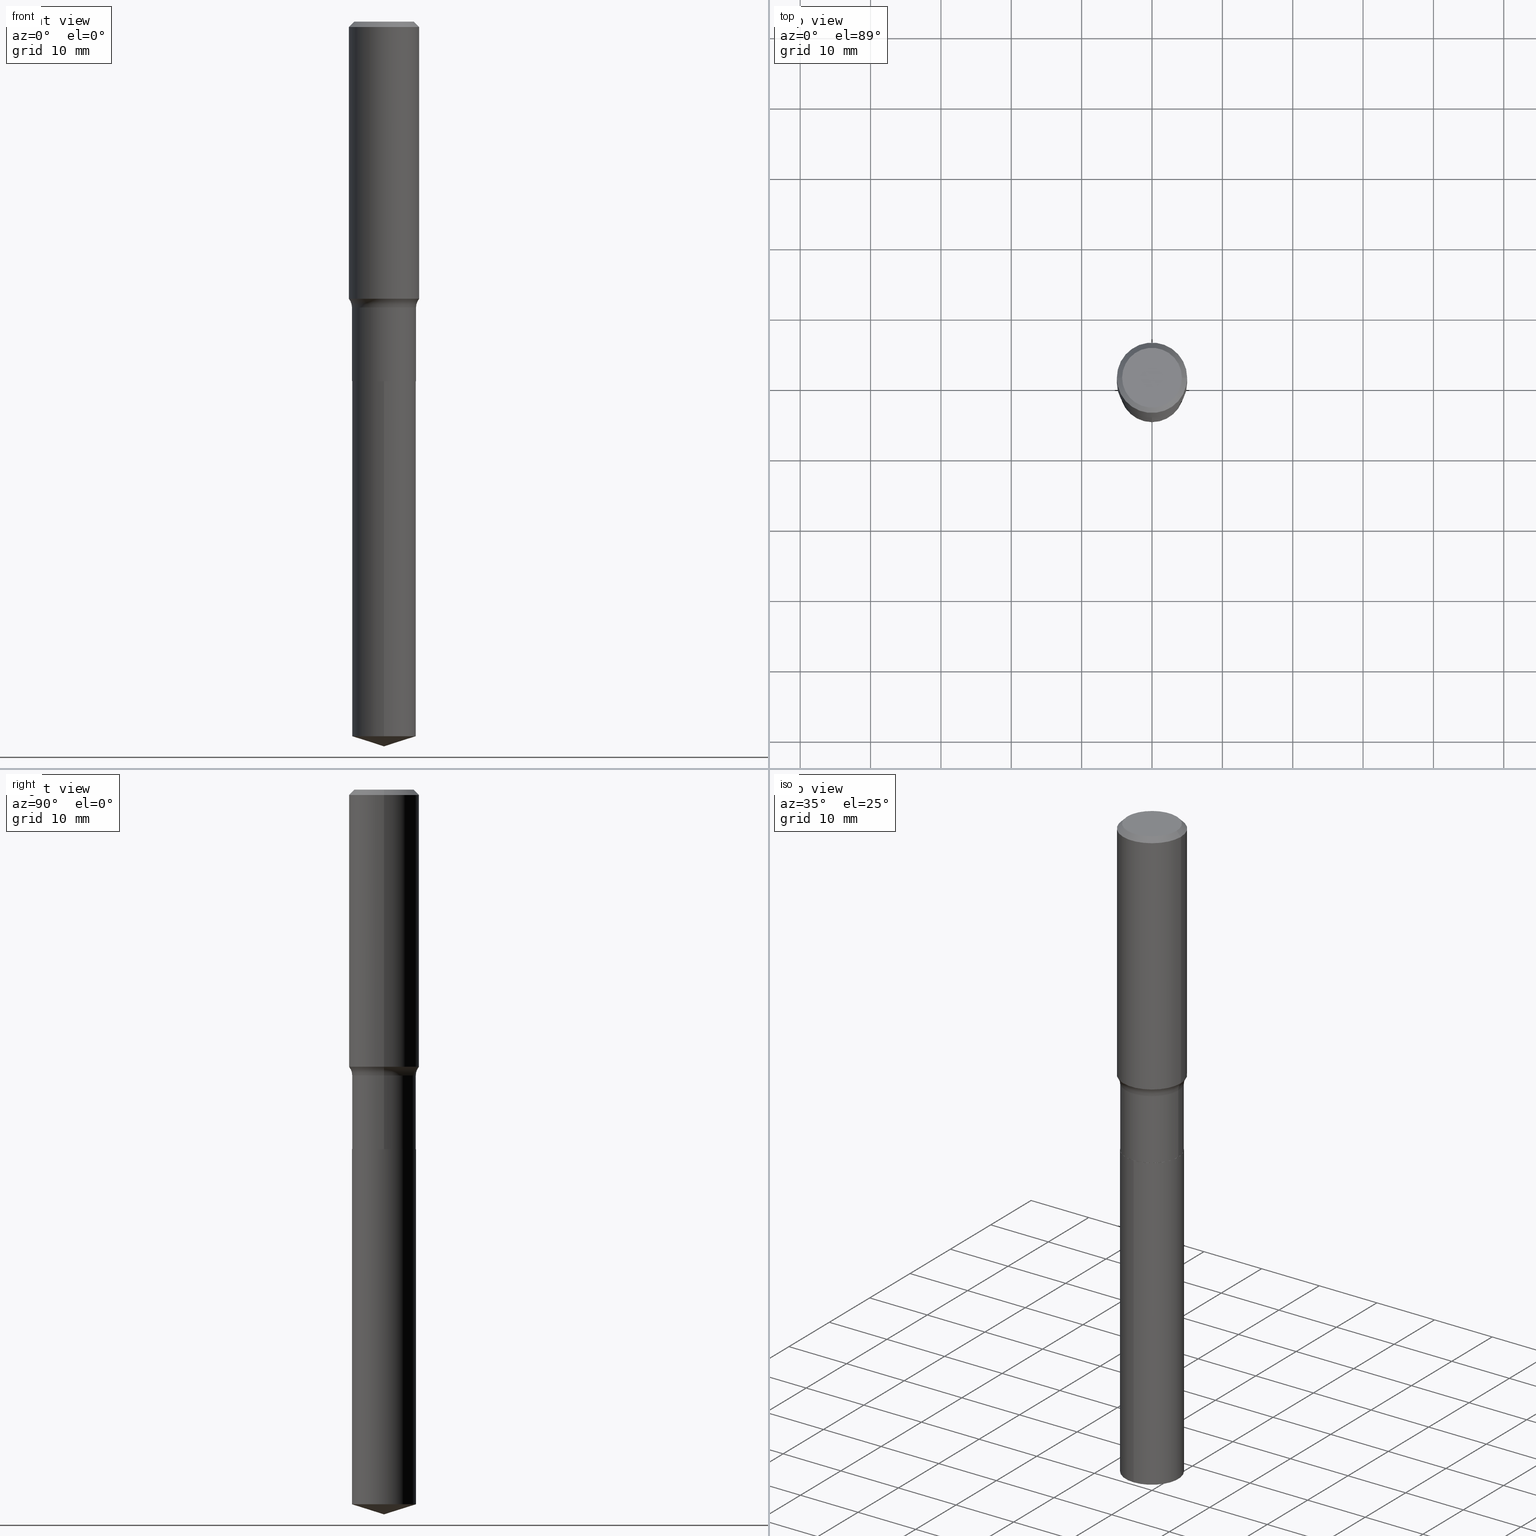
[diagram: canonical four-view strip — front | top / right | iso, engineering-drawing reading convention]
A machine part, canonical four-view strip (front | top / right | iso — engineering-drawing reading convention). The complete STEP part file that produces these views, byte-faithful:
ISO-10303-21;
HEADER;
FILE_DESCRIPTION (( 'STEP AP203' ),
    '1' );
FILE_NAME ('64164.STEP',
    '2024-04-19T15:25:16',
    ( '' ),
    ( '' ),
    'SwSTEP 2.0',
    'SolidWorks 2023',
    '' );
FILE_SCHEMA (( 'CONFIG_CONTROL_DESIGN' ));
ENDSEC;

DATA;
#1 = CIRCLE ( 'NONE', #245, 0.1791500000000000314 ) ;
#2 = AXIS2_PLACEMENT_3D ( 'NONE', #141, #23, #140 ) ;
#3 = LINE ( 'NONE', #266, #311 ) ;
#4 = ORIENTED_EDGE ( 'NONE', *, *, #139, .F. ) ;
#5 = EDGE_CURVE ( 'NONE', #236, #88, #124, .T. ) ;
#6 = CARTESIAN_POINT ( 'NONE',  ( 0.000000000000000000, 0.000000000000000000, 0.000000000000000000 ) ) ;
#7 = ORIENTED_EDGE ( 'NONE', *, *, #375, .F. ) ;
#8 = APPROVAL_ROLE ( '' ) ;
#9 = DIRECTION ( 'NONE',  ( -6.982962677686265922E-15, -1.000000000000000000, 3.500519750498688260E-15 ) ) ;
#10 = CARTESIAN_POINT ( 'NONE',  ( 0.1968500000000000527, -1.453583746094018101E-15, -0.02952750000000019595 ) ) ;
#11 = CIRCLE ( 'NONE', #377, 0.1791499999999999759 ) ;
#12 = CALENDAR_DATE ( 2024, 19, 4 ) ;
#13 = ORIENTED_EDGE ( 'NONE', *, *, #234, .T. ) ;
#14 = CARTESIAN_POINT ( 'NONE',  ( -0.1968500000000000527, 1.271501487869850317E-15, -0.02952750000000019595 ) ) ;
#15 = APPLICATION_PROTOCOL_DEFINITION ( 'international standard', 'config_control_design', 1994, #286 ) ;
#16 = DIRECTION ( 'NONE',  ( -2.445468806185136597E-29, 3.491481338843145583E-15, 1.000000000000000000 ) ) ;
#17 = PERSON_AND_ORGANIZATION ( #355, #353 ) ;
#18 = CARTESIAN_POINT ( 'NONE',  ( 3.791268106025666650E-29, -5.412926065243654777E-15, -1.550323642009541425 ) ) ;
#19 = CARTESIAN_POINT ( 'NONE',  ( 4.919794144283257255E-29, -7.024162157484639438E-15, -2.011800000000000033 ) ) ;
#20 = CONICAL_SURFACE ( 'NONE', #238, 0.1968500000000000527, 0.7853981633974459475 ) ;
#21 = CIRCLE ( 'NONE', #85, 0.1791500000000000592 ) ;
#22 = EDGE_CURVE ( 'NONE', #37, #308, #204, .T. ) ;
#23 = DIRECTION ( 'NONE',  ( -2.445468806185136597E-29, 3.491481338843145583E-15, 1.000000000000000000 ) ) ;
#24 = APPROVAL ( #200, 'UNSPECIFIED' ) ;
#25 = CYLINDRICAL_SURFACE ( 'NONE', #369, 0.1791500000000000314 ) ;
#26 = CARTESIAN_POINT ( 'NONE',  ( 0.1786500000000000310, -8.271668439853292431E-15, -2.011800000000000033 ) ) ;
#27 = FACE_OUTER_BOUND ( 'NONE', #401, .T. ) ;
#28 = CARTESIAN_POINT ( 'NONE',  ( 0.2571499999999999342, -7.381340698448287746E-15, -1.599800000000000333 ) ) ;
#29 = AXIS2_PLACEMENT_3D ( 'NONE', #403, #287, #482 ) ;
#30 = DIRECTION ( 'NONE',  ( 6.776566513254260504E-15, 0.9537169507482292641, 0.3007057995042659027 ) ) ;
#31 = CARTESIAN_POINT ( 'NONE',  ( 0.1791500000000000314, -1.250997763707495014E-15, 8.735670693838419573E-30 ) ) ;
#32 = ORIENTED_EDGE ( 'NONE', *, *, #288, .F. ) ;
#33 = DIRECTION ( 'NONE',  ( -2.445468806185136597E-29, 3.491481338843145583E-15, 1.000000000000000000 ) ) ;
#34 = AXIS2_PLACEMENT_3D ( 'NONE', #111, #346, #386 ) ;
#35 = EDGE_LOOP ( 'NONE', ( #109, #310 ) ) ;
#36 = DESIGN_CONTEXT ( 'detailed design', #286, 'design' ) ;
#37 = VERTEX_POINT ( 'NONE', #432 ) ;
#38 = FACE_OUTER_BOUND ( 'NONE', #35, .T. ) ;
#39 = ADVANCED_BREP_SHAPE_REPRESENTATION ( '64164', ( #399, #65, #196 ), #296 ) ;
#40 = VERTEX_POINT ( 'NONE', #351 ) ;
#41 = AXIS2_PLACEMENT_3D ( 'NONE', #19, #440, #391 ) ;
#42 =( CONVERSION_BASED_UNIT ( 'INCH', #337 ) LENGTH_UNIT ( ) NAMED_UNIT ( #197 ) );
#43 = ORIENTED_EDGE ( 'NONE', *, *, #5, .T. ) ;
#44 = DATE_AND_TIME ( #397, #320 ) ;
#45 = DIRECTION ( 'NONE',  ( 1.000000000000000000, -6.982962677686265133E-15, 0.000000000000000000 ) ) ;
#46 = CALENDAR_DATE ( 2024, 19, 4 ) ;
#47 = EDGE_LOOP ( 'NONE', ( #338, #43, #212, #374 ) ) ;
#48 = PERSON_AND_ORGANIZATION ( #355, #353 ) ;
#49 = ORIENTED_EDGE ( 'NONE', *, *, #407, .T. ) ;
#50 = AXIS2_PLACEMENT_3D ( 'NONE', #101, #103, #376 ) ;
#51 = EDGE_CURVE ( 'NONE', #37, #206, #331, .T. ) ;
#52 = PERSON_AND_ORGANIZATION ( #355, #353 ) ;
#53 = ORIENTED_EDGE ( 'NONE', *, *, #490, .T. ) ;
#54 = DIRECTION ( 'NONE',  ( -0.7071067811865459074, 2.468850131082239706E-15, -0.7071067811865492381 ) ) ;
#55 = PERSON_AND_ORGANIZATION ( #355, #353 ) ;
#56 = ORIENTED_EDGE ( 'NONE', *, *, #438, .T. ) ;
#57 = DIRECTION ( 'NONE',  ( 1.000000000000000000, -6.982962677686266711E-15, 0.000000000000000000 ) ) ;
#58 = FACE_OUTER_BOUND ( 'NONE', #390, .T. ) ;
#59 = LINE ( 'NONE', #14, #455 ) ;
#60 = CC_DESIGN_DATE_AND_TIME_ASSIGNMENT ( #203, #357, ( #157 ) ) ;
#61 = CIRCLE ( 'NONE', #479, 0.1673224999999999851 ) ;
#62 = DIRECTION ( 'NONE',  ( 1.000000000000000000, -6.982962677686265922E-15, 0.000000000000000000 ) ) ;
#63 = CARTESIAN_POINT ( 'NONE',  ( -5.008488096090108951E-47, 7.150793614331948590E-33, 2.048068690724054183E-18 ) ) ;
#64 = DIRECTION ( 'NONE',  ( -1.000000000000000000, 6.982962677686266711E-15, 0.000000000000000000 ) ) ;
#65 = MANIFOLD_SOLID_BREP ( 'Body-Move/Copy2[2]', #220 ) ;
#66 = DIRECTION ( 'NONE',  ( 1.000000000000000000, -6.982962677686269866E-15, 0.000000000000000000 ) ) ;
#67 = CIRCLE ( 'NONE', #119, 0.1791500000000000314 ) ;
#68 = ADVANCED_FACE ( 'NONE', ( #398 ), #136, .T. ) ;
#69 = PLANE ( 'NONE',  #148 ) ;
#70 = DIRECTION ( 'NONE',  ( 1.000000000000000000, -6.982962677686265922E-15, 0.000000000000000000 ) ) ;
#71 = EDGE_LOOP ( 'NONE', ( #184, #147, #452, #243 ) ) ;
#72 = DIRECTION ( 'NONE',  ( 1.000000000000000000, -6.982962677686268288E-15, 0.000000000000000000 ) ) ;
#73 = DIRECTION ( 'NONE',  ( -0.7071067811866441621, 7.493145998870704414E-15, 0.7071067811864508723 ) ) ;
#74 = EDGE_LOOP ( 'NONE', ( #344, #115, #466, #426 ) ) ;
#75 = EDGE_CURVE ( 'NONE', #88, #308, #367, .T. ) ;
#76 = AXIS2_PLACEMENT_3D ( 'NONE', #356, #16, #280 ) ;
#77 = LOCAL_TIME ( 11, 25, 16.00000000000000000, #167 ) ;
#78 = DIRECTION ( 'NONE',  ( -2.445468806185136597E-29, 3.491481338843145583E-15, 1.000000000000000000 ) ) ;
#79 = ORIENTED_EDGE ( 'NONE', *, *, #22, .F. ) ;
#80 = CYLINDRICAL_SURFACE ( 'NONE', #149, 0.1968500000000001360 ) ;
#81 = VERTEX_POINT ( 'NONE', #163 ) ;
#82 = EDGE_LOOP ( 'NONE', ( #347, #358, #281, #201 ) ) ;
#83 = AXIS2_PLACEMENT_3D ( 'NONE', #28, #137, #72 ) ;
#84 = EDGE_CURVE ( 'NONE', #206, #37, #254, .T. ) ;
#85 = AXIS2_PLACEMENT_3D ( 'NONE', #258, #409, #70 ) ;
#86 = EDGE_LOOP ( 'NONE', ( #126, #56, #459, #394 ) ) ;
#87 = ORIENTED_EDGE ( 'NONE', *, *, #239, .F. ) ;
#88 = VERTEX_POINT ( 'NONE', #285 ) ;
#89 = ADVANCED_FACE ( 'NONE', ( #437 ), #166, .T. ) ;
#90 = AXIS2_PLACEMENT_3D ( 'NONE', #441, #98, #480 ) ;
#91 = VERTEX_POINT ( 'NONE', #93 ) ;
#92 = APPROVAL_STATUS ( 'not_yet_approved' ) ;
#93 = CARTESIAN_POINT ( 'NONE',  ( 1.272937311114317328E-15, 0.1791499999999929815, -2.011800000000000477 ) ) ;
#94 = CARTESIAN_POINT ( 'NONE',  ( 4.919794144283257255E-29, -7.024162157484639438E-15, -2.011800000000000033 ) ) ;
#95 = DIRECTION ( 'NONE',  ( -2.445468806185136597E-29, 3.491481338843145583E-15, 1.000000000000000000 ) ) ;
#96 = FACE_OUTER_BOUND ( 'NONE', #47, .T. ) ;
#97 = APPROVAL_PERSON_ORGANIZATION ( #17, #24, #393 ) ;
#98 = DIRECTION ( 'NONE',  ( 2.445553117458370087E-29, -3.491360600301175150E-15, -1.000000000000000000 ) ) ;
#99 = CARTESIAN_POINT ( 'NONE',  ( 3.912260996134982219E-29, -5.585671845881265277E-15, -1.599800000000000333 ) ) ;
#100 = DIRECTION ( 'NONE',  ( -2.445553117458370367E-29, 3.491360600301175150E-15, 1.000000000000000000 ) ) ;
#101 = CARTESIAN_POINT ( 'NONE',  ( 3.912260996134982219E-29, -5.585671845881265277E-15, -1.599800000000000333 ) ) ;
#102 = CC_DESIGN_DATE_AND_TIME_ASSIGNMENT ( #279, #465, ( #282 ) ) ;
#103 = DIRECTION ( 'NONE',  ( -2.445468806185136597E-29, 3.491481338843145583E-15, 1.000000000000000000 ) ) ;
#104 = APPROVAL_PERSON_ORGANIZATION ( #207, #475, #132 ) ;
#105 = DIRECTION ( 'NONE',  ( -1.000000000000000000, 6.982962677686266711E-15, 0.000000000000000000 ) ) ;
#106 = ADVANCED_FACE ( 'NONE', ( #133 ), #350, .T. ) ;
#107 = MECHANICAL_CONTEXT ( 'NONE', #324, 'mechanical' ) ;
#108 = ORIENTED_EDGE ( 'NONE', *, *, #288, .T. ) ;
#109 = ORIENTED_EDGE ( 'NONE', *, *, #244, .F. ) ;
#110 = AXIS2_PLACEMENT_3D ( 'NONE', #362, #289, #62 ) ;
#111 = CARTESIAN_POINT ( 'NONE',  ( 4.919794144283257255E-29, -7.024162157484639438E-15, -2.011800000000000033 ) ) ;
#112 = ORIENTED_EDGE ( 'NONE', *, *, #329, .T. ) ;
#113 = EDGE_CURVE ( 'NONE', #236, #274, #319, .T. ) ;
#114 =( NAMED_UNIT ( * ) SI_UNIT ( $, .STERADIAN. ) SOLID_ANGLE_UNIT ( ) );
#115 = ORIENTED_EDGE ( 'NONE', *, *, #275, .T. ) ;
#116 = ADVANCED_FACE ( 'NONE', ( #58 ), #270, .T. ) ;
#117 = CARTESIAN_POINT ( 'NONE',  ( -0.1786500000000000310, -5.754777560049220630E-15, -2.011800000000000033 ) ) ;
#118 = ORIENTED_EDGE ( 'NONE', *, *, #139, .T. ) ;
#119 = AXIS2_PLACEMENT_3D ( 'NONE', #373, #371, #224 ) ;
#120 = CC_DESIGN_APPROVAL ( #475, ( #157 ) ) ;
#121 = DIRECTION ( 'NONE',  ( -2.445468806185136597E-29, 3.491481338843145583E-15, 1.000000000000000000 ) ) ;
#122 = CARTESIAN_POINT ( 'NONE',  ( 7.220858017463209485E-31, -1.030947152326916609E-16, -0.02952750000000019595 ) ) ;
#123 = ADVANCED_FACE ( 'NONE', ( #293 ), #448, .F. ) ;
#124 = LINE ( 'NONE', #10, #342 ) ;
#125 = SHAPE_DEFINITION_REPRESENTATION ( #229, #39 ) ;
#126 = ORIENTED_EDGE ( 'NONE', *, *, #244, .T. ) ;
#127 = CLOSED_SHELL ( 'NONE', ( #316, #116, #89, #410, #192 ) ) ;
#128 = AXIS2_PLACEMENT_3D ( 'NONE', #430, #158, #9 ) ;
#129 = PERSON_AND_ORGANIZATION_ROLE ( 'creator' ) ;
#130 = DIRECTION ( 'NONE',  ( -2.445468806185136597E-29, 3.491481338843145583E-15, 1.000000000000000000 ) ) ;
#131 = VECTOR ( 'NONE', #456, 39.37007874015748143 ) ;
#132 = APPROVAL_ROLE ( '' ) ;
#133 = FACE_OUTER_BOUND ( 'NONE', #233, .T. ) ;
#134 = ADVANCED_FACE ( 'NONE', ( #366 ), #20, .T. ) ;
#135 = DIRECTION ( 'NONE',  ( -2.445553117458370367E-29, 3.491360600301175150E-15, 1.000000000000000000 ) ) ;
#136 = CONICAL_SURFACE ( 'NONE', #76, 0.1786500000000000310, 0.7853981633975849475 ) ;
#137 = DIRECTION ( 'NONE',  ( -6.982962677686266711E-15, -1.000000000000000000, 3.491481338843145583E-15 ) ) ;
#138 = CARTESIAN_POINT ( 'NONE',  ( 9.916965421294541964E-29, -1.415781637028129679E-14, -4.055100000000000371 ) ) ;
#139 = EDGE_CURVE ( 'NONE', #206, #385, #295, .T. ) ;
#140 = DIRECTION ( 'NONE',  ( 1.000000000000000000, -6.982962677686269077E-15, 0.000000000000000000 ) ) ;
#141 = CARTESIAN_POINT ( 'NONE',  ( 4.919794144283257255E-29, -7.024162157484639438E-15, -2.011800000000000033 ) ) ;
#142 = AXIS2_PLACEMENT_3D ( 'NONE', #178, #33, #185 ) ;
#143 = EDGE_CURVE ( 'NONE', #306, #385, #11, .T. ) ;
#144 = EDGE_LOOP ( 'NONE', ( #489, #380, #251, #277 ) ) ;
#145 = ORIENTED_EDGE ( 'NONE', *, *, #422, .T. ) ;
#146 = FACE_OUTER_BOUND ( 'NONE', #74, .T. ) ;
#147 = ORIENTED_EDGE ( 'NONE', *, *, #458, .T. ) ;
#148 = AXIS2_PLACEMENT_3D ( 'NONE', #63, #216, #364 ) ;
#149 = AXIS2_PLACEMENT_3D ( 'NONE', #6, #460, #378 ) ;
#150 = DIRECTION ( 'NONE',  ( -2.445468806185136877E-29, 3.491481338843145188E-15, 1.000000000000000000 ) ) ;
#151 = EDGE_LOOP ( 'NONE', ( #32, #145, #382 ) ) ;
#152 = EDGE_LOOP ( 'NONE', ( #112, #53, #194, #492 ) ) ;
#153 = EDGE_CURVE ( 'NONE', #37, #306, #327, .T. ) ;
#154 = CARTESIAN_POINT ( 'NONE',  ( 0.000000000000000000, 0.000000000000000000, 0.000000000000000000 ) ) ;
#155 = EDGE_CURVE ( 'NONE', #385, #306, #427, .T. ) ;
#156 = CIRCLE ( 'NONE', #142, 0.1786500000000000310 ) ;
#157 = SECURITY_CLASSIFICATION ( '', '', #436 ) ;
#158 = DIRECTION ( 'NONE',  ( -2.445553117458370367E-29, 3.491360600301175150E-15, 1.000000000000000000 ) ) ;
#159 = CARTESIAN_POINT ( 'NONE',  ( 0.1673224999999999851, -1.300749711163072594E-15, 4.096137381456741925E-18 ) ) ;
#160 = CARTESIAN_POINT ( 'NONE',  ( -0.1968500000000001360, 1.398703375343758182E-15, -9.682923725166790684E-30 ) ) ;
#161 = CARTESIAN_POINT ( 'NONE',  ( -0.1786500000000000310, -5.752128332875109429E-15, -2.011800000000000033 ) ) ;
#162 = PERSON_AND_ORGANIZATION ( #355, #353 ) ;
#163 = CARTESIAN_POINT ( 'NONE',  ( -1.250997763707445513E-15, -0.1791500000000070536, -2.011799999999999145 ) ) ;
#164 = DIRECTION ( 'NONE',  ( -6.982962677686265133E-15, -1.000000000000000000, 3.049788438363675772E-15 ) ) ;
#165 = EDGE_CURVE ( 'NONE', #91, #81, #67, .T. ) ;
#166 = CONICAL_SURFACE ( 'NONE', #128, 124.8659371009156445, 1.265363707695893014 ) ;
#167 = COORDINATED_UNIVERSAL_TIME_OFFSET ( 5, 0, .BEHIND. ) ;
#168 = ORIENTED_EDGE ( 'NONE', *, *, #165, .T. ) ;
#169 = VECTOR ( 'NONE', #150, 39.37007874015748143 ) ;
#170 = EDGE_CURVE ( 'NONE', #40, #385, #484, .T. ) ;
#171 = CARTESIAN_POINT ( 'NONE',  ( -0.1968500000000000527, -1.359307014894414655E-15, -0.02952750000000019595 ) ) ;
#172 = CARTESIAN_POINT ( 'NONE',  ( 9.778653858638317059E-29, -1.396084705219686894E-14, -3.998614221972331073 ) ) ;
#173 = LINE ( 'NONE', #477, #261 ) ;
#174 = EDGE_CURVE ( 'NONE', #241, #199, #156, .T. ) ;
#175 = AXIS2_PLACEMENT_3D ( 'NONE', #443, #222, #227 ) ;
#176 = CARTESIAN_POINT ( 'NONE',  ( -1.250997763707445513E-15, -0.1791500000000070536, -2.011799999999999145 ) ) ;
#177 = AXIS2_PLACEMENT_3D ( 'NONE', #318, #130, #45 ) ;
#178 = CARTESIAN_POINT ( 'NONE',  ( 4.919794144283257255E-29, -7.024162157484639438E-15, -2.011800000000000033 ) ) ;
#179 = CARTESIAN_POINT ( 'NONE',  ( 3.912260996134982219E-29, -5.585671845881265277E-15, -1.599800000000000333 ) ) ;
#180 = PLANE ( 'NONE',  #90 ) ;
#181 = DIRECTION ( 'NONE',  ( -2.445468806185136597E-29, 3.491481338843145583E-15, 1.000000000000000000 ) ) ;
#182 = DIRECTION ( 'NONE',  ( 1.000000000000000000, -6.982962677686266711E-15, 4.876176775795935793E-29 ) ) ;
#183 = DIRECTION ( 'NONE',  ( 1.000000000000000000, 0.000000000000000000, 0.000000000000000000 ) ) ;
#184 = ORIENTED_EDGE ( 'NONE', *, *, #300, .T. ) ;
#185 = DIRECTION ( 'NONE',  ( 1.000000000000000000, -6.982962677686269077E-15, 0.000000000000000000 ) ) ;
#186 = VECTOR ( 'NONE', #365, 39.37007874015748143 ) ;
#187 = VECTOR ( 'NONE', #372, 39.37007874015748143 ) ;
#188 =( NAMED_UNIT ( * ) PLANE_ANGLE_UNIT ( ) SI_UNIT ( $, .RADIAN. ) );
#189 = ORIENTED_EDGE ( 'NONE', *, *, #143, .F. ) ;
#190 = PLANE ( 'NONE',  #34 ) ;
#191 = ORIENTED_EDGE ( 'NONE', *, *, #143, .T. ) ;
#192 = ADVANCED_FACE ( 'NONE', ( #328 ), #180, .F. ) ;
#193 = LINE ( 'NONE', #491, #169 ) ;
#194 = ORIENTED_EDGE ( 'NONE', *, *, #155, .F. ) ;
#195 = AXIS2_PLACEMENT_3D ( 'NONE', #439, #95, #253 ) ;
#196 = AXIS2_PLACEMENT_3D ( 'NONE', #198, #307, #183 ) ;
#197 = DIMENSIONAL_EXPONENTS ( 1.000000000000000000, 0.000000000000000000, 0.000000000000000000, 0.000000000000000000, 0.000000000000000000, 0.000000000000000000, 0.000000000000000000 ) ;
#198 = CARTESIAN_POINT ( 'NONE',  ( 0.000000000000000000, 0.000000000000000000, 0.000000000000000000 ) ) ;
#199 = VERTEX_POINT ( 'NONE', #26 ) ;
#200 = APPROVAL_STATUS ( 'not_yet_approved' ) ;
#201 = ORIENTED_EDGE ( 'NONE', *, *, #264, .F. ) ;
#202 = ADVANCED_FACE ( 'NONE', ( #263 ), #257, .T. ) ;
#203 = DATE_AND_TIME ( #284, #333 ) ;
#204 = LINE ( 'NONE', #160, #446 ) ;
#205 = APPROVAL_DATE_TIME ( #250, #475 ) ;
#206 = VERTEX_POINT ( 'NONE', #411 ) ;
#207 = PERSON_AND_ORGANIZATION ( #355, #353 ) ;
#208 = ORIENTED_EDGE ( 'NONE', *, *, #51, .F. ) ;
#209 = DIRECTION ( 'NONE',  ( -2.445553117458370367E-29, 3.491360600301175150E-15, 1.000000000000000000 ) ) ;
#210 = PERSON_AND_ORGANIZATION_ROLE ( 'classification_officer' ) ;
#211 = ADVANCED_FACE ( 'NONE', ( #413 ), #69, .F. ) ;
#212 = ORIENTED_EDGE ( 'NONE', *, *, #75, .T. ) ;
#213 = TOROIDAL_SURFACE ( 'NONE', #290, 0.2571499999999999342, 0.07799999999999999989 ) ;
#214 = PRODUCT_DEFINITION_FORMATION_WITH_SPECIFIED_SOURCE ( 'ANY', '', #339, .NOT_KNOWN. ) ;
#215 = DIRECTION ( 'NONE',  ( 2.445468806185136597E-29, -3.491481338843145583E-15, -1.000000000000000000 ) ) ;
#216 = DIRECTION ( 'NONE',  ( 2.438088387897960049E-29, -3.491481338843145188E-15, -1.000000000000000000 ) ) ;
#217 = EDGE_CURVE ( 'NONE', #199, #40, #173, .T. ) ;
#218 = CARTESIAN_POINT ( 'NONE',  ( -1.001697619218021790E-46, 1.430158722866389718E-32, 4.096137381448108366E-18 ) ) ;
#219 = DIRECTION ( 'NONE',  ( -2.445468806185136877E-29, 3.491481338843145188E-15, 1.000000000000000000 ) ) ;
#220 = CLOSED_SHELL ( 'NONE', ( #68, #392, #485, #269, #435, #106, #123, #202, #134, #211, #429, #294 ) ) ;
#221 = AXIS2_PLACEMENT_3D ( 'NONE', #154, #121, #278 ) ;
#222 = DIRECTION ( 'NONE',  ( 7.105427357601001859E-15, 1.000000000000000000, -3.491481338843145583E-15 ) ) ;
#223 = CARTESIAN_POINT ( 'NONE',  ( -1.250997763707397393E-15, -0.1791500000000140758, -3.998614221972330629 ) ) ;
#224 = DIRECTION ( 'NONE',  ( -6.982962677686265133E-15, -1.000000000000000000, 3.049788438363675772E-15 ) ) ;
#225 = CARTESIAN_POINT ( 'NONE',  ( -0.1791500000000000592, -5.031106820234021505E-15, -2.011299999999999866 ) ) ;
#226 = ORIENTED_EDGE ( 'NONE', *, *, #300, .F. ) ;
#227 = DIRECTION ( 'NONE',  ( -1.000000000000000000, 7.105427357601001859E-15, 0.000000000000000000 ) ) ;
#228 = EDGE_LOOP ( 'NONE', ( #13, #168 ) ) ;
#229 = PRODUCT_DEFINITION_SHAPE ( 'NONE', 'NONE',  #282 ) ;
#230 = CIRCLE ( 'NONE', #41, 0.1786500000000000310 ) ;
#231 = EDGE_CURVE ( 'NONE', #274, #308, #59, .T. ) ;
#232 = FACE_OUTER_BOUND ( 'NONE', #152, .T. ) ;
#233 = EDGE_LOOP ( 'NONE', ( #354, #268, #273, #189 ) ) ;
#234 = EDGE_CURVE ( 'NONE', #81, #91, #1, .T. ) ;
#235 = DIRECTION ( 'NONE',  ( -2.445553117458370367E-29, 3.491360600301175150E-15, 1.000000000000000000 ) ) ;
#236 = VERTEX_POINT ( 'NONE', #159 ) ;
#237 = VERTEX_POINT ( 'NONE', #314 ) ;
#238 = AXIS2_PLACEMENT_3D ( 'NONE', #259, #326, #105 ) ;
#239 = EDGE_CURVE ( 'NONE', #308, #88, #345, .T. ) ;
#240 = DIRECTION ( 'NONE',  ( -2.445468806185136597E-29, 3.491481338843145583E-15, 1.000000000000000000 ) ) ;
#241 = VERTEX_POINT ( 'NONE', #161 ) ;
#242 = CALENDAR_DATE ( 2024, 19, 4 ) ;
#243 = ORIENTED_EDGE ( 'NONE', *, *, #309, .F. ) ;
#244 = EDGE_CURVE ( 'NONE', #199, #241, #230, .T. ) ;
#245 = AXIS2_PLACEMENT_3D ( 'NONE', #94, #209, #164 ) ;
#246 = AXIS2_PLACEMENT_3D ( 'NONE', #453, #451, #272 ) ;
#247 = AXIS2_PLACEMENT_3D ( 'NONE', #292, #256, #444 ) ;
#248 = APPROVAL_DATE_TIME ( #389, #24 ) ;
#249 = EDGE_LOOP ( 'NONE', ( #416, #299, #488, #7 ) ) ;
#250 = DATE_AND_TIME ( #12, #77 ) ;
#251 = ORIENTED_EDGE ( 'NONE', *, *, #231, .T. ) ;
#252 = DIRECTION ( 'NONE',  ( -2.445468806185136597E-29, 3.491481338843145583E-15, 1.000000000000000000 ) ) ;
#253 = DIRECTION ( 'NONE',  ( 1.000000000000000000, -6.982962677686267499E-15, 4.876294436782262290E-29 ) ) ;
#254 = CIRCLE ( 'NONE', #177, 0.1968500000000002470 ) ;
#255 = CONICAL_SURFACE ( 'NONE', #428, 0.1968500000000000527, 0.7853981633974459475 ) ;
#256 = DIRECTION ( 'NONE',  ( -2.445553117458370367E-29, 3.491360600301175150E-15, 1.000000000000000000 ) ) ;
#257 = CYLINDRICAL_SURFACE ( 'NONE', #472, 0.1968500000000001360 ) ;
#258 = CARTESIAN_POINT ( 'NONE',  ( 4.918571409880165014E-29, -7.022416416815218724E-15, -2.011299999999999866 ) ) ;
#259 = CARTESIAN_POINT ( 'NONE',  ( 7.220858017463209485E-31, -1.030947152326916609E-16, -0.02952750000000019595 ) ) ;
#260 = DIRECTION ( 'NONE',  ( -2.445468806185136597E-29, 3.491481338843145583E-15, 1.000000000000000000 ) ) ;
#261 = VECTOR ( 'NONE', #291, 39.37007874015748143 ) ;
#262 = CC_DESIGN_APPROVAL ( #24, ( #282 ) ) ;
#263 = FACE_OUTER_BOUND ( 'NONE', #433, .T. ) ;
#264 = EDGE_CURVE ( 'NONE', #206, #88, #467, .T. ) ;
#265 = CARTESIAN_POINT ( 'NONE',  ( -0.1673224999999999851, 1.219954130253505460E-15, 4.096137381439757534E-18 ) ) ;
#266 = CARTESIAN_POINT ( 'NONE',  ( 1.272937311114268616E-15, 0.1791499999999929815, -2.011800000000000477 ) ) ;
#267 = VERTEX_POINT ( 'NONE', #223 ) ;
#268 = ORIENTED_EDGE ( 'NONE', *, *, #375, .T. ) ;
#269 = ADVANCED_FACE ( 'NONE', ( #27 ), #213, .F. ) ;
#270 = CONICAL_SURFACE ( 'NONE', #29, 124.8659371009156445, 1.265363707695893014 ) ;
#271 = VECTOR ( 'NONE', #73, 39.37007874015748143 ) ;
#272 = DIRECTION ( 'NONE',  ( 1.000000000000000000, -6.982962677686267499E-15, 4.876176775795935232E-29 ) ) ;
#273 = ORIENTED_EDGE ( 'NONE', *, *, #170, .T. ) ;
#274 = VERTEX_POINT ( 'NONE', #265 ) ;
#275 = EDGE_CURVE ( 'NONE', #302, #267, #486, .T. ) ;
#276 = DIRECTION ( 'NONE',  ( -6.982962677686265133E-15, -1.000000000000000000, 3.049788438363675772E-15 ) ) ;
#277 = ORIENTED_EDGE ( 'NONE', *, *, #239, .T. ) ;
#278 = DIRECTION ( 'NONE',  ( 1.000000000000000000, -6.982962677686267499E-15, 4.876176775795935232E-29 ) ) ;
#279 = DATE_AND_TIME ( #46, #449 ) ;
#280 = DIRECTION ( 'NONE',  ( 1.000000000000000000, -6.982962677686269077E-15, 0.000000000000000000 ) ) ;
#281 = ORIENTED_EDGE ( 'NONE', *, *, #75, .F. ) ;
#282 = PRODUCT_DEFINITION ( 'UNKNOWN', '', #214, #36 ) ;
#283 = AXIS2_PLACEMENT_3D ( 'NONE', #423, #235, #276 ) ;
#284 = CALENDAR_DATE ( 2024, 19, 4 ) ;
#285 = CARTESIAN_POINT ( 'NONE',  ( 0.1968500000000000527, -1.477690918335233688E-15, -0.02952750000000019595 ) ) ;
#286 = APPLICATION_CONTEXT ( 'configuration controlled 3d designs of mechanical parts and assemblies' ) ;
#287 = DIRECTION ( 'NONE',  ( -2.445553117458370367E-29, 3.491360600301175150E-15, 1.000000000000000000 ) ) ;
#288 = EDGE_CURVE ( 'NONE', #237, #302, #370, .T. ) ;
#289 = DIRECTION ( 'NONE',  ( -2.445468806185136597E-29, 3.491481338843145583E-15, 1.000000000000000000 ) ) ;
#290 = AXIS2_PLACEMENT_3D ( 'NONE', #179, #181, #481 ) ;
#291 = DIRECTION ( 'NONE',  ( 0.7071067811866441621, -2.468850131083269169E-15, 0.7071067811864508723 ) ) ;
#292 = CARTESIAN_POINT ( 'NONE',  ( 9.778653858638317059E-29, -1.396084705219686894E-14, -3.998614221972331073 ) ) ;
#293 = FACE_OUTER_BOUND ( 'NONE', #424, .T. ) ;
#294 = ADVANCED_FACE ( 'NONE', ( #476 ), #478, .T. ) ;
#295 = CIRCLE ( 'NONE', #83, 0.07800000000000002764 ) ;
#296 =( GEOMETRIC_REPRESENTATION_CONTEXT ( 3 ) GLOBAL_UNCERTAINTY_ASSIGNED_CONTEXT ( ( #383 ) ) GLOBAL_UNIT_ASSIGNED_CONTEXT ( ( #42, #188, #114 ) ) REPRESENTATION_CONTEXT ( 'NONE', 'WORKASPACE' ) );
#297 = DIRECTION ( 'NONE',  ( -2.445468806185136597E-29, 3.491481338843145583E-15, 1.000000000000000000 ) ) ;
#298 = APPLICATION_PROTOCOL_DEFINITION ( 'international standard', 'config_control_design', 1994, #324 ) ;
#299 = ORIENTED_EDGE ( 'NONE', *, *, #174, .T. ) ;
#300 = EDGE_CURVE ( 'NONE', #267, #302, #305, .T. ) ;
#301 = PERSON_AND_ORGANIZATION ( #355, #353 ) ;
#302 = VERTEX_POINT ( 'NONE', #442 ) ;
#303 = LINE ( 'NONE', #340, #131 ) ;
#304 = EDGE_LOOP ( 'NONE', ( #49, #421 ) ) ;
#305 = CIRCLE ( 'NONE', #247, 0.1791500000000000314 ) ;
#306 = VERTEX_POINT ( 'NONE', #325 ) ;
#307 = DIRECTION ( 'NONE',  ( 0.000000000000000000, 0.000000000000000000, 1.000000000000000000 ) ) ;
#308 = VERTEX_POINT ( 'NONE', #171 ) ;
#309 = EDGE_CURVE ( 'NONE', #267, #81, #412, .T. ) ;
#310 = ORIENTED_EDGE ( 'NONE', *, *, #174, .F. ) ;
#311 = VECTOR ( 'NONE', #425, 39.37007874015748143 ) ;
#312 = COORDINATED_UNIVERSAL_TIME_OFFSET ( 5, 0, .BEHIND. ) ;
#313 = DIRECTION ( 'NONE',  ( 0.7071067811865459074, -7.319954787623251312E-15, -0.7071067811865492381 ) ) ;
#314 = CARTESIAN_POINT ( 'NONE',  ( 9.916962446605438106E-29, -1.415781637028129679E-14, -4.055100000000000371 ) ) ;
#315 = APPROVAL_DATE_TIME ( #44, #336 ) ;
#316 = ADVANCED_FACE ( 'NONE', ( #330 ), #25, .T. ) ;
#317 = DIRECTION ( 'NONE',  ( 1.000000000000000000, -6.982962677686265133E-15, 0.000000000000000000 ) ) ;
#318 = CARTESIAN_POINT ( 'NONE',  ( 3.791268106025666650E-29, -5.412926065243654777E-15, -1.550323642009541425 ) ) ;
#319 = CIRCLE ( 'NONE', #195, 0.1673224999999999851 ) ;
#320 = LOCAL_TIME ( 11, 25, 16.00000000000000000, #470 ) ;
#321 = DIRECTION ( 'NONE',  ( -2.445468806185136597E-29, 3.491481338843145583E-15, 1.000000000000000000 ) ) ;
#322 = CARTESIAN_POINT ( 'NONE',  ( 0.1968500000000001360, -1.374596203102542594E-15, 9.598753983154306463E-30 ) ) ;
#323 = CC_DESIGN_PERSON_AND_ORGANIZATION_ASSIGNMENT ( #55, #129, ( #214 ) ) ;
#324 = APPLICATION_CONTEXT ( 'configuration controlled 3d designs of mechanical parts and assemblies' ) ;
#325 = CARTESIAN_POINT ( 'NONE',  ( -0.1791499999999999759, -5.031106820234021505E-15, -1.599800000000000333 ) ) ;
#326 = DIRECTION ( 'NONE',  ( 2.445468806185136597E-29, -3.491481338843145583E-15, -1.000000000000000000 ) ) ;
#327 = CIRCLE ( 'NONE', #175, 0.07800000000000002764 ) ;
#328 = FACE_OUTER_BOUND ( 'NONE', #228, .T. ) ;
#329 = EDGE_CURVE ( 'NONE', #40, #471, #21, .T. ) ;
#330 = FACE_OUTER_BOUND ( 'NONE', #71, .T. ) ;
#331 = CIRCLE ( 'NONE', #434, 0.1968500000000002470 ) ;
#332 =( LENGTH_UNIT ( ) NAMED_UNIT ( * ) SI_UNIT ( $, .METRE. ) );
#333 = LOCAL_TIME ( 11, 25, 16.00000000000000000, #431 ) ;
#334 = ORIENTED_EDGE ( 'NONE', *, *, #153, .F. ) ;
#335 = DIRECTION ( 'NONE',  ( -2.445468806185136597E-29, 3.491481338843145583E-15, 1.000000000000000000 ) ) ;
#336 = APPROVAL ( #387, 'UNSPECIFIED' ) ;
#337 = LENGTH_MEASURE_WITH_UNIT ( LENGTH_MEASURE( 0.02539999999999999897 ), #332 );
#338 = ORIENTED_EDGE ( 'NONE', *, *, #113, .F. ) ;
#339 = PRODUCT ( '64164', '64164', '', ( #107 ) ) ;
#340 = CARTESIAN_POINT ( 'NONE',  ( 9.916623211766455081E-29, -1.415830217387876846E-14, -4.055100000000000371 ) ) ;
#341 = ORIENTED_EDGE ( 'NONE', *, *, #153, .T. ) ;
#342 = VECTOR ( 'NONE', #313, 39.37007874015748143 ) ;
#343 = LINE ( 'NONE', #117, #271 ) ;
#344 = ORIENTED_EDGE ( 'NONE', *, *, #458, .F. ) ;
#345 = CIRCLE ( 'NONE', #404, 0.1968500000000000527 ) ;
#346 = DIRECTION ( 'NONE',  ( -2.438088387897960049E-29, 3.491481338843145188E-15, 1.000000000000000000 ) ) ;
#347 = ORIENTED_EDGE ( 'NONE', *, *, #84, .T. ) ;
#348 = CC_DESIGN_PERSON_AND_ORGANIZATION_ASSIGNMENT ( #468, #462, ( #214 ) ) ;
#349 = COORDINATED_UNIVERSAL_TIME_OFFSET ( 5, 0, .BEHIND. ) ;
#350 = CYLINDRICAL_SURFACE ( 'NONE', #221, 0.1791500000000000314 ) ;
#351 = CARTESIAN_POINT ( 'NONE',  ( 0.1791500000000000592, -8.273414180522713146E-15, -2.011299999999999866 ) ) ;
#352 = AXIS2_PLACEMENT_3D ( 'NONE', #172, #100, #414 ) ;
#353 = ORGANIZATION ( 'UNSPECIFIED', 'UNSPECIFIED', '' ) ;
#354 = ORIENTED_EDGE ( 'NONE', *, *, #490, .F. ) ;
#355 = PERSON ( 'UNSPECIFIED', 'UNSPECIFIED', 'UNSPECIFIED', ('UNSPECIFIED'), ('UNSPECIFIED'), ('UNSPECIFIED') ) ;
#356 = CARTESIAN_POINT ( 'NONE',  ( 4.919794144283257255E-29, -7.024162157484639438E-15, -2.011800000000000033 ) ) ;
#357 = DATE_TIME_ROLE ( 'classification_date' ) ;
#358 = ORIENTED_EDGE ( 'NONE', *, *, #22, .T. ) ;
#359 = PRODUCT_RELATED_PRODUCT_CATEGORY ( 'detail', '', ( #339 ) ) ;
#360 = VECTOR ( 'NONE', #219, 39.37007874015748143 ) ;
#361 = CIRCLE ( 'NONE', #110, 0.1791500000000000592 ) ;
#362 = CARTESIAN_POINT ( 'NONE',  ( 4.918571409880165014E-29, -7.022416416815218724E-15, -2.011299999999999866 ) ) ;
#363 = CARTESIAN_POINT ( 'NONE',  ( 0.1791499999999999759, -6.836669609588759700E-15, -1.599800000000000333 ) ) ;
#364 = DIRECTION ( 'NONE',  ( -1.000000000000000000, 6.982962677686265922E-15, -4.876176775795935793E-29 ) ) ;
#365 = DIRECTION ( 'NONE',  ( -2.445468806185136877E-29, 3.491481338843145188E-15, 1.000000000000000000 ) ) ;
#366 = FACE_OUTER_BOUND ( 'NONE', #144, .T. ) ;
#367 = CIRCLE ( 'NONE', #396, 0.1968500000000000527 ) ;
#368 = CC_DESIGN_PERSON_AND_ORGANIZATION_ASSIGNMENT ( #301, #418, ( #339 ) ) ;
#369 = AXIS2_PLACEMENT_3D ( 'NONE', #483, #135, #474 ) ;
#370 = LINE ( 'NONE', #138, #417 ) ;
#371 = DIRECTION ( 'NONE',  ( -2.445553117458370367E-29, 3.491360600301175150E-15, 1.000000000000000000 ) ) ;
#372 = DIRECTION ( 'NONE',  ( -2.445553117458370087E-29, 3.491360600301175150E-15, 1.000000000000000000 ) ) ;
#373 = CARTESIAN_POINT ( 'NONE',  ( 4.919794144283257255E-29, -7.024162157484639438E-15, -2.011800000000000033 ) ) ;
#374 = ORIENTED_EDGE ( 'NONE', *, *, #231, .F. ) ;
#375 = EDGE_CURVE ( 'NONE', #471, #40, #361, .T. ) ;
#376 = DIRECTION ( 'NONE',  ( 1.000000000000000000, -6.982962677686269866E-15, 0.000000000000000000 ) ) ;
#377 = AXIS2_PLACEMENT_3D ( 'NONE', #445, #335, #66 ) ;
#378 = DIRECTION ( 'NONE',  ( 1.000000000000000000, -6.982962677686266711E-15, 4.876176775795935793E-29 ) ) ;
#379 = LOCAL_TIME ( 11, 25, 16.00000000000000000, #349 ) ;
#380 = ORIENTED_EDGE ( 'NONE', *, *, #407, .F. ) ;
#381 = FACE_OUTER_BOUND ( 'NONE', #82, .T. ) ;
#382 = ORIENTED_EDGE ( 'NONE', *, *, #275, .F. ) ;
#383 = UNCERTAINTY_MEASURE_WITH_UNIT (LENGTH_MEASURE( 1.000000000000000082E-05 ), #42, 'distance_accuracy_value', 'NONE');
#384 = DIRECTION ( 'NONE',  ( 1.000000000000000000, -6.982962677686267499E-15, 4.876294436782262290E-29 ) ) ;
#385 = VERTEX_POINT ( 'NONE', #363 ) ;
#386 = DIRECTION ( 'NONE',  ( 1.000000000000000000, -6.982962677686265922E-15, 4.876176775795935793E-29 ) ) ;
#387 = APPROVAL_STATUS ( 'not_yet_approved' ) ;
#388 = CARTESIAN_POINT ( 'NONE',  ( 7.220858017463209485E-31, -1.030947152326916609E-16, -0.02952750000000019595 ) ) ;
#389 = DATE_AND_TIME ( #242, #379 ) ;
#390 = EDGE_LOOP ( 'NONE', ( #457, #108, #226 ) ) ;
#391 = DIRECTION ( 'NONE',  ( 1.000000000000000000, -6.982962677686269077E-15, 0.000000000000000000 ) ) ;
#392 = ADVANCED_FACE ( 'NONE', ( #96 ), #255, .T. ) ;
#393 = APPROVAL_ROLE ( '' ) ;
#394 = ORIENTED_EDGE ( 'NONE', *, *, #217, .F. ) ;
#395 = AXIS2_PLACEMENT_3D ( 'NONE', #99, #297, #450 ) ;
#396 = AXIS2_PLACEMENT_3D ( 'NONE', #388, #321, #473 ) ;
#397 = CALENDAR_DATE ( 2024, 19, 4 ) ;
#398 = FACE_OUTER_BOUND ( 'NONE', #86, .T. ) ;
#399 = MANIFOLD_SOLID_BREP ( 'Body-Move/Copy2[1]', #127 ) ;
#400 = PERSON_AND_ORGANIZATION_ROLE ( 'creator' ) ;
#401 = EDGE_LOOP ( 'NONE', ( #208, #341, #191, #4 ) ) ;
#402 = CC_DESIGN_PERSON_AND_ORGANIZATION_ASSIGNMENT ( #162, #400, ( #282 ) ) ;
#403 = CARTESIAN_POINT ( 'NONE',  ( -8.636482596838769660E-28, 1.232970824720607245E-13, 35.31497874015747840 ) ) ;
#404 = AXIS2_PLACEMENT_3D ( 'NONE', #122, #252, #57 ) ;
#405 = CC_DESIGN_SECURITY_CLASSIFICATION ( #157, ( #214 ) ) ;
#406 = CARTESIAN_POINT ( 'NONE',  ( 7.220858017463209485E-31, -1.030947152326916609E-16, -0.02952750000000019595 ) ) ;
#407 = EDGE_CURVE ( 'NONE', #274, #236, #61, .T. ) ;
#408 = CARTESIAN_POINT ( 'NONE',  ( 0.000000000000000000, 0.000000000000000000, 0.000000000000000000 ) ) ;
#409 = DIRECTION ( 'NONE',  ( -2.445468806185136597E-29, 3.491481338843145583E-15, 1.000000000000000000 ) ) ;
#410 = ADVANCED_FACE ( 'NONE', ( #146 ), #420, .T. ) ;
#411 = CARTESIAN_POINT ( 'NONE',  ( 0.1968500000000002470, -6.787522268346197963E-15, -1.550323642009541425 ) ) ;
#412 = LINE ( 'NONE', #176, #187 ) ;
#413 = FACE_OUTER_BOUND ( 'NONE', #304, .T. ) ;
#414 = DIRECTION ( 'NONE',  ( -6.982962677686265133E-15, -1.000000000000000000, 3.049788438363675772E-15 ) ) ;
#415 = CYLINDRICAL_SURFACE ( 'NONE', #246, 0.1791500000000000314 ) ;
#416 = ORIENTED_EDGE ( 'NONE', *, *, #438, .F. ) ;
#417 = VECTOR ( 'NONE', #30, 39.37007874015748854 ) ;
#418 = PERSON_AND_ORGANIZATION_ROLE ( 'design_owner' ) ;
#419 = ORIENTED_EDGE ( 'NONE', *, *, #84, .F. ) ;
#420 = CYLINDRICAL_SURFACE ( 'NONE', #283, 0.1791500000000000314 ) ;
#421 = ORIENTED_EDGE ( 'NONE', *, *, #113, .T. ) ;
#422 = EDGE_CURVE ( 'NONE', #237, #267, #303, .T. ) ;
#423 = CARTESIAN_POINT ( 'NONE',  ( 4.919794144283257255E-29, -7.024162157484639438E-15, -2.011800000000000033 ) ) ;
#424 = EDGE_LOOP ( 'NONE', ( #334, #419, #118, #469 ) ) ;
#425 = DIRECTION ( 'NONE',  ( -2.445553117458370087E-29, 3.491360600301175150E-15, 1.000000000000000000 ) ) ;
#426 = ORIENTED_EDGE ( 'NONE', *, *, #165, .F. ) ;
#427 = CIRCLE ( 'NONE', #50, 0.1791499999999999759 ) ;
#428 = AXIS2_PLACEMENT_3D ( 'NONE', #406, #215, #64 ) ;
#429 = ADVANCED_FACE ( 'NONE', ( #38 ), #190, .F. ) ;
#430 = CARTESIAN_POINT ( 'NONE',  ( -8.636482596838769660E-28, 1.232970824720607245E-13, 35.31497874015747840 ) ) ;
#431 = COORDINATED_UNIVERSAL_TIME_OFFSET ( 5, 0, .BEHIND. ) ;
#432 = CARTESIAN_POINT ( 'NONE',  ( -0.1968500000000002470, -4.014222689899896200E-15, -1.550323642009541425 ) ) ;
#433 = EDGE_LOOP ( 'NONE', ( #79, #461, #454, #87 ) ) ;
#434 = AXIS2_PLACEMENT_3D ( 'NONE', #18, #240, #317 ) ;
#435 = ADVANCED_FACE ( 'NONE', ( #232 ), #415, .T. ) ;
#436 = SECURITY_CLASSIFICATION_LEVEL ( 'unclassified' ) ;
#437 = FACE_OUTER_BOUND ( 'NONE', #151, .T. ) ;
#438 = EDGE_CURVE ( 'NONE', #241, #471, #343, .T. ) ;
#439 = CARTESIAN_POINT ( 'NONE',  ( -1.001697619218021790E-46, 1.430158722866389718E-32, 4.096137381448108366E-18 ) ) ;
#440 = DIRECTION ( 'NONE',  ( -2.445468806185136597E-29, 3.491481338843145583E-15, 1.000000000000000000 ) ) ;
#441 = CARTESIAN_POINT ( 'NONE',  ( 4.919794144283257255E-29, -7.024162157484639438E-15, -2.011800000000000033 ) ) ;
#442 = CARTESIAN_POINT ( 'NONE',  ( 1.272937311114317920E-15, 0.1791499999999861259, -3.998614221972331517 ) ) ;
#443 = CARTESIAN_POINT ( 'NONE',  ( -0.2571499999999999342, -3.758511200874167723E-15, -1.599800000000000333 ) ) ;
#444 = DIRECTION ( 'NONE',  ( -6.982962677686265133E-15, -1.000000000000000000, 3.049788438363675772E-15 ) ) ;
#445 = CARTESIAN_POINT ( 'NONE',  ( 3.912260996134982219E-29, -5.585671845881265277E-15, -1.599800000000000333 ) ) ;
#446 = VECTOR ( 'NONE', #463, 39.37007874015748143 ) ;
#447 = CC_DESIGN_PERSON_AND_ORGANIZATION_ASSIGNMENT ( #52, #210, ( #157 ) ) ;
#448 = TOROIDAL_SURFACE ( 'NONE', #395, 0.2571499999999999342, 0.07799999999999999989 ) ;
#449 = LOCAL_TIME ( 11, 25, 16.00000000000000000, #312 ) ;
#450 = DIRECTION ( 'NONE',  ( 1.000000000000000000, -6.982962677686266711E-15, 4.883557194083112901E-29 ) ) ;
#451 = DIRECTION ( 'NONE',  ( -2.445468806185136597E-29, 3.491481338843145583E-15, 1.000000000000000000 ) ) ;
#452 = ORIENTED_EDGE ( 'NONE', *, *, #234, .F. ) ;
#453 = CARTESIAN_POINT ( 'NONE',  ( 0.000000000000000000, 0.000000000000000000, 0.000000000000000000 ) ) ;
#454 = ORIENTED_EDGE ( 'NONE', *, *, #264, .T. ) ;
#455 = VECTOR ( 'NONE', #54, 39.37007874015748143 ) ;
#456 = DIRECTION ( 'NONE',  ( -6.659769872151635244E-15, -0.9537169507482271547, 0.3007057995042725640 ) ) ;
#457 = ORIENTED_EDGE ( 'NONE', *, *, #422, .F. ) ;
#458 = EDGE_CURVE ( 'NONE', #302, #91, #3, .T. ) ;
#459 = ORIENTED_EDGE ( 'NONE', *, *, #329, .F. ) ;
#460 = DIRECTION ( 'NONE',  ( -2.445468806185136597E-29, 3.491481338843145583E-15, 1.000000000000000000 ) ) ;
#461 = ORIENTED_EDGE ( 'NONE', *, *, #51, .T. ) ;
#462 = PERSON_AND_ORGANIZATION_ROLE ( 'design_supplier' ) ;
#463 = DIRECTION ( 'NONE',  ( -2.445468806185136877E-29, 3.491481338843145188E-15, 1.000000000000000000 ) ) ;
#464 = APPROVAL_PERSON_ORGANIZATION ( #48, #336, #8 ) ;
#465 = DATE_TIME_ROLE ( 'creation_date' ) ;
#466 = ORIENTED_EDGE ( 'NONE', *, *, #309, .T. ) ;
#467 = LINE ( 'NONE', #322, #186 ) ;
#468 = PERSON_AND_ORGANIZATION ( #355, #353 ) ;
#469 = ORIENTED_EDGE ( 'NONE', *, *, #155, .T. ) ;
#470 = COORDINATED_UNIVERSAL_TIME_OFFSET ( 5, 0, .BEHIND. ) ;
#471 = VERTEX_POINT ( 'NONE', #225 ) ;
#472 = AXIS2_PLACEMENT_3D ( 'NONE', #408, #260, #182 ) ;
#473 = DIRECTION ( 'NONE',  ( 1.000000000000000000, -6.982962677686266711E-15, 0.000000000000000000 ) ) ;
#474 = DIRECTION ( 'NONE',  ( -6.982962677686265133E-15, -1.000000000000000000, 3.049788438363675772E-15 ) ) ;
#475 = APPROVAL ( #92, 'UNSPECIFIED' ) ;
#476 = FACE_OUTER_BOUND ( 'NONE', #249, .T. ) ;
#477 = CARTESIAN_POINT ( 'NONE',  ( 0.1786500000000000310, -8.271668439853292431E-15, -2.011800000000000033 ) ) ;
#478 = CONICAL_SURFACE ( 'NONE', #2, 0.1786500000000000310, 0.7853981633975849475 ) ;
#479 = AXIS2_PLACEMENT_3D ( 'NONE', #218, #78, #384 ) ;
#480 = DIRECTION ( 'NONE',  ( 6.982962677686265922E-15, 1.000000000000000000, -3.491360600301175150E-15 ) ) ;
#481 = DIRECTION ( 'NONE',  ( 1.000000000000000000, -6.982962677686266711E-15, 4.883557194083112901E-29 ) ) ;
#482 = DIRECTION ( 'NONE',  ( -6.982962677686265922E-15, -1.000000000000000000, 3.500519750498688260E-15 ) ) ;
#483 = CARTESIAN_POINT ( 'NONE',  ( 4.919794144283257255E-29, -7.024162157484639438E-15, -2.011800000000000033 ) ) ;
#484 = LINE ( 'NONE', #31, #360 ) ;
#485 = ADVANCED_FACE ( 'NONE', ( #381 ), #80, .T. ) ;
#486 = CIRCLE ( 'NONE', #352, 0.1791500000000000314 ) ;
#487 = CC_DESIGN_APPROVAL ( #336, ( #214 ) ) ;
#488 = ORIENTED_EDGE ( 'NONE', *, *, #217, .T. ) ;
#489 = ORIENTED_EDGE ( 'NONE', *, *, #5, .F. ) ;
#490 = EDGE_CURVE ( 'NONE', #471, #306, #193, .T. ) ;
#491 = CARTESIAN_POINT ( 'NONE',  ( -0.1791500000000000314, 1.272937311114219706E-15, -8.812272214191663486E-30 ) ) ;
#492 = ORIENTED_EDGE ( 'NONE', *, *, #170, .F. ) ;
ENDSEC;
END-ISO-10303-21;
